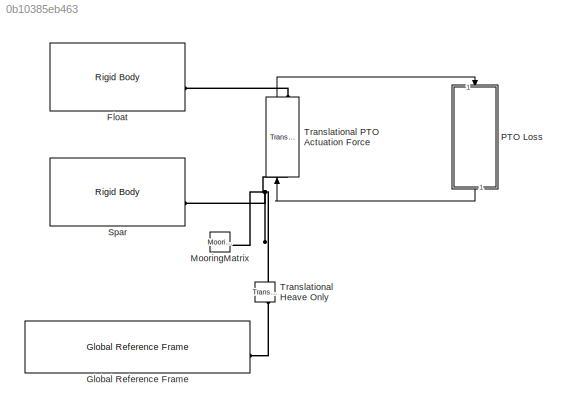
MODEL slx_0b10385eb463
KIND model
CONFIG AbsTol = auto
CONFIG EnableMultiTasking = off
CONFIG FixedStep = 0.01
CONFIG MaxStep = 0.01
CONFIG MinStep = auto
CONFIG RelTol = 1e-3
CONFIG SampleTimeConstraint = Unconstrained
CONFIG SolverName = ode4
CONFIG StartTime = 0
CONFIG StopTime = 80
BLOCK [Reference] Float  REF=WECSim_Lib_Body_Elements/Rigid Body
  AttributesFormatString = %<body>
  SourceBlock = WECSim_Lib_Body_Elements/Rigid Body
  SourceType = Rigid Body
BLOCK [Reference] Global Reference Frame  REF=WECSim_Lib_Frames/Global Reference Frame
  SourceBlock = WECSim_Lib_Frames/Global Reference Frame
  SourceType = Frames
BLOCK [Reference] MooringMatrix   REF=WECSim_Lib_Moorings/MooringMatrix
  AttributesFormatString = %<mooring>
  SourceBlock = WECSim_Lib_Moorings/MooringMatrix
  SourceType = Mooring Matrix
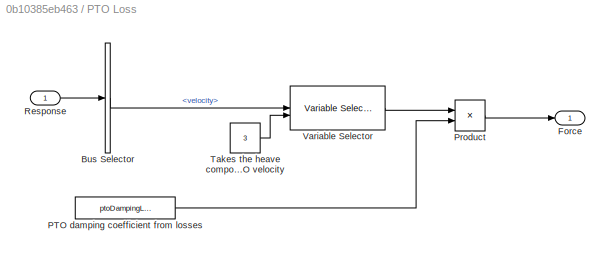
BLOCK [SubSystem] PTO Loss
  NameLocation = left
BLOCK [BusSelector] PTO Loss/Bus Selector
  OutputSignals = velocity
BLOCK [Outport] PTO Loss/Force
BLOCK [Constant] PTO Loss/PTO damping coefficient from losses
  Value = ptoDampingLoss
BLOCK [Product] PTO Loss/Product
BLOCK [Inport] PTO Loss/Response
BLOCK [Constant] PTO Loss/Takes the heave component of the PTO velocity
  Value = 3
BLOCK [Reference] PTO Loss/Variable Selector  REF=dspindex/Variable
Selector
  SourceBlock = dspindex/Variable\nSelector
  SourceType = Variable Selector
BLOCK [Reference] Spar  REF=WECSim_Lib_Body_Elements/Rigid Body
  AttributesFormatString = %<body>
  SourceBlock = WECSim_Lib_Body_Elements/Rigid Body
  SourceType = Rigid Body
BLOCK [Reference] Translational Heave Only   REF=WECSim_Lib_Constraints/Translational
  AttributesFormatString = %<constraint>
  NameLocation = right
  SourceBlock = WECSim_Lib_Constraints/Translational
  SourceType = Constraints
BLOCK [Reference] Translational PTO Actuation Force   REF=WECSim_Lib_PTOs/Translational PTO
Actuation Force
  AttributesFormatString = %<pto>
  NameLocation = right
  SourceBlock = WECSim_Lib_PTOs/Translational PTO\nActuation Force
  SourceType = PTO
LINE PTO Loss/Bus Selector:1 -> PTO Loss/Variable Selector:1
LINE PTO Loss/PTO damping coefficient from losses:1 -> PTO Loss/Product:2
LINE PTO Loss/Product:1 -> PTO Loss/Force:1
LINE PTO Loss/Response:1 -> PTO Loss/Bus Selector:1
LINE PTO Loss/Takes the heave component of the PTO velocity:1 -> PTO Loss/Variable Selector:2
LINE PTO Loss/Variable Selector:1 -> PTO Loss/Product:1
LINE PTO Loss:1 -> Translational PTO Actuation Force :1
LINE Translational PTO Actuation Force :1 -> PTO Loss:1
PLINE Float:RConn1 -- Translational PTO Actuation Force :RConn1
PLINE Global Reference Frame:RConn1 -- Translational Heave Only :LConn1
PNET net1: MooringMatrix :LConn1 -- Spar:RConn1 -- Translational Heave Only :RConn1 -- Translational PTO Actuation Force :LConn1
note: PNET lines group multi-terminal physical nets as a canonical sorted terminal list (undirected conserving connections); 2-terminal nets keep the pairwise PLINE form
